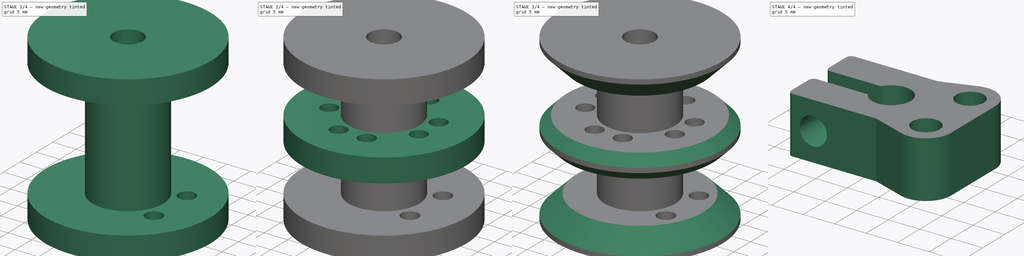
[diagram: build sequence overview — one tinted view per stage of 4, left to right]
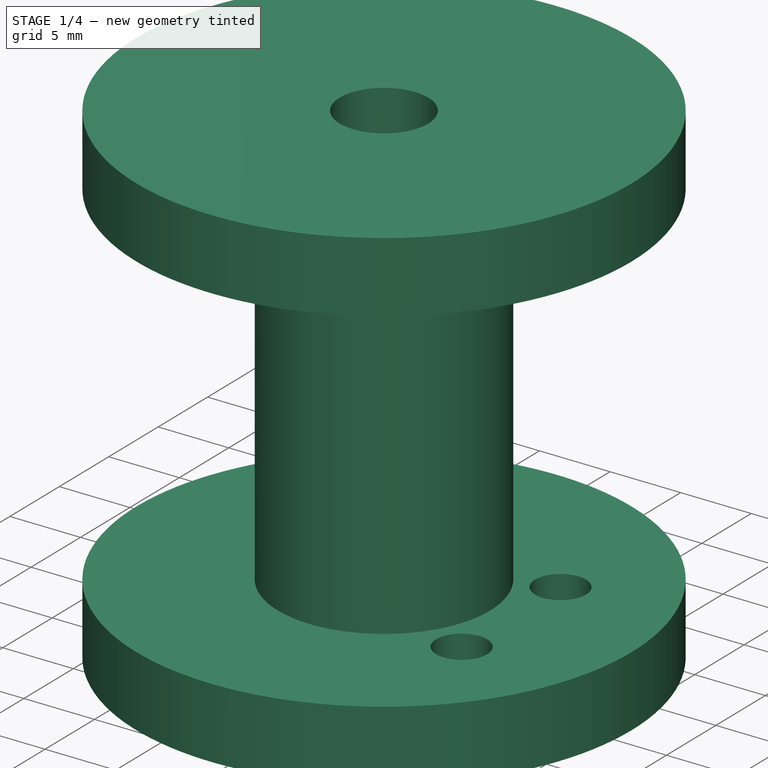
[diagram: stage 1 of 4 — iso view after this stage's code; geometry added in this stage tinted green]
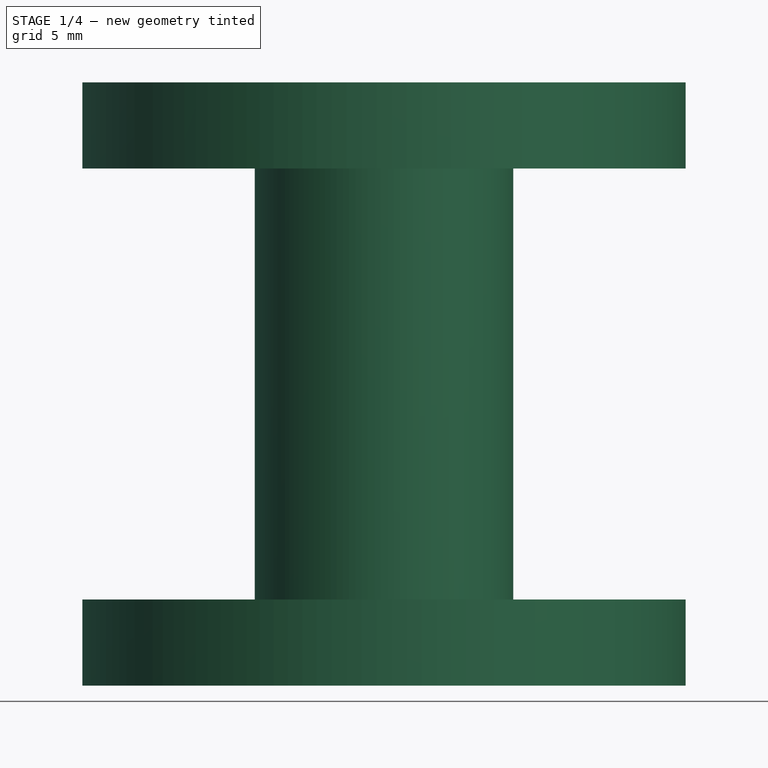
[diagram: stage 1 of 4 — front view after this stage's code; geometry added in this stage tinted green]
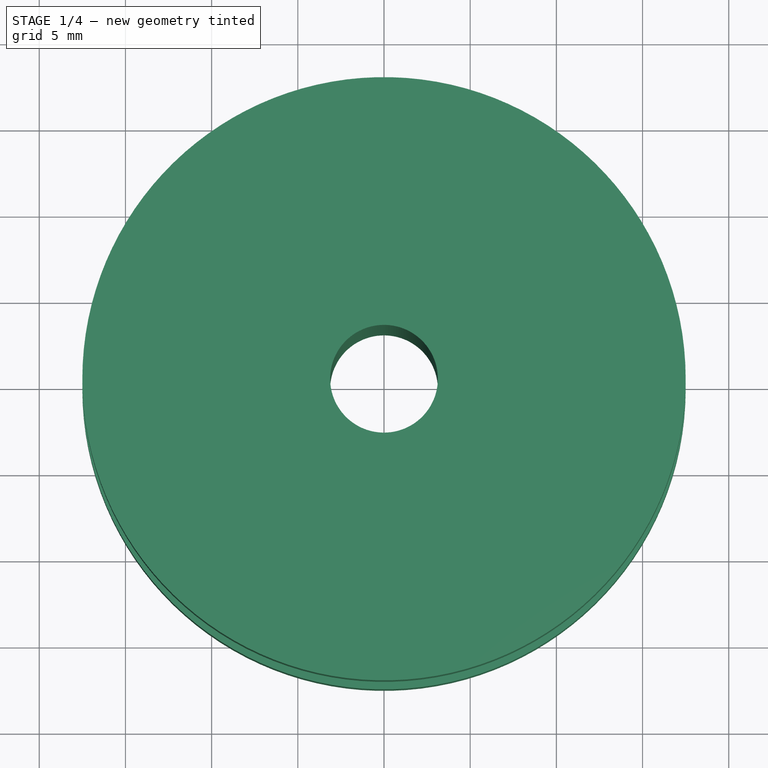
[diagram: stage 1 of 4 — top view after this stage's code; geometry added in this stage tinted green]
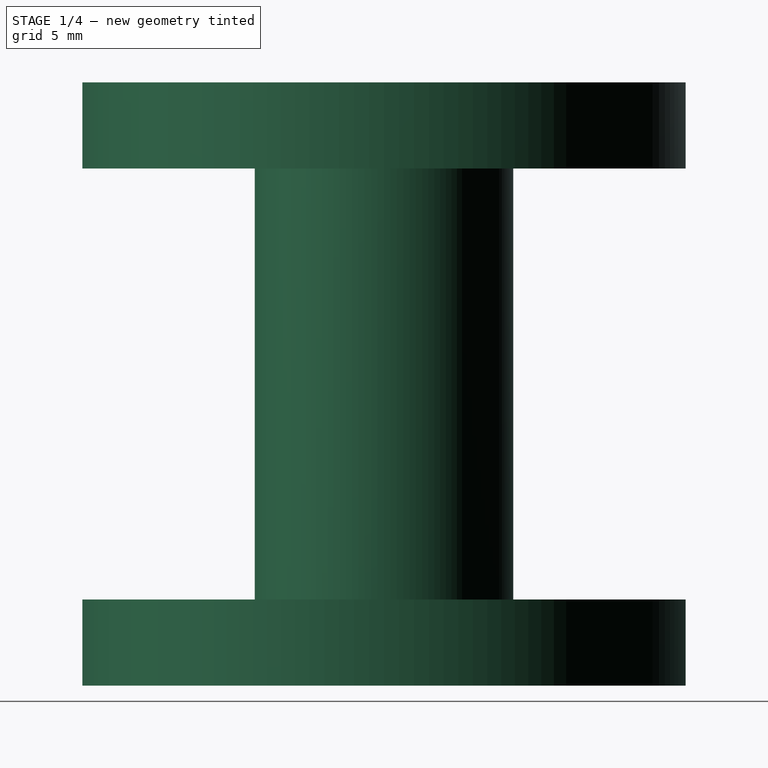
[diagram: stage 1 of 4 — right view after this stage's code; geometry added in this stage tinted green]
FCSTD DOCUMENT  (FreeCAD 1.1R42863 (Git))
Label: Spool
License: All rights reserved
LicenseURL: https://en.wikipedia.org/wiki/All_rights_reserved
objects: Sketcher::SketchObject×7, PartDesign::Pad×5, App::Point×2, PartDesign::Pocket×2, PartDesign::Chamfer×2, PartDesign::Body×2, Part::DatumPlane×1, PartDesign::PolarPattern×1, PartDesign::SubShapeBinder×1, PartDesign::Fillet×1
note: 49 computed .brp shape members not serialized (recipe doc carries the construction recipe); baked Part::Feature solids carry a one-line shape summary decoded from their .brp
EXTERNAL_REF file=../Variables.FCStd obj=Spreadsheet

FEATURE [App::Point] Origin001
  Role = Origin
FEATURE [Sketcher::SketchObject] Sketch
  ArcFitTolerance = 1e-06
  AttachmentSupport = -> [XY_Plane]
  ExternalTypes = [0]
  FullyConstrained = true
  MakeInternals = false
  MapMode = 5
  expr: Constraints[13] = Variables#Spreadsheet.SpoolInnerDiam
  expr: Constraints[7] = Variables#Spreadsheet.M4TapDiam
  sketch-geometry (7):
    g0: Circle CenterX=-2.798e-13 CenterY=0 CenterZ=0 NormalX=0 NormalY=0 NormalZ=1 AngleXU=0 Radius=17.5
    g1: LineSegment [constr] StartX=9 StartY=5 StartZ=0 EndX=9 EndY=-5 EndZ=0
    g2: GeomPoint [constr] X=9 Y=0 Z=0
    g3: Circle CenterX=9 CenterY=5 CenterZ=0 NormalX=0 NormalY=0 NormalZ=1 AngleXU=0 Radius=1.8
    g4: Circle CenterX=9 CenterY=-5 CenterZ=0 NormalX=0 NormalY=0 NormalZ=1 AngleXU=0 Radius=1.8
    g5: Circle CenterX=-2.798e-13 CenterY=0 CenterZ=0 NormalX=0 NormalY=0 NormalZ=1 AngleXU=0 Radius=3.125
    g6: Circle [constr] CenterX=-2.798e-13 CenterY=0 CenterZ=0 NormalX=0 NormalY=0 NormalZ=1 AngleXU=0 Radius=7.5
  constraints (15):
    c: Diameter(g0) = 35
    c: Coincident(g0,g-1)
    c: Distance(g1) = 10
    c: Vertical(g1)
    c: Symmetric(g1,g1,g2)
    c: PointOnObject(g2,g-1)
    c: Coincident(g3,g1)
    c: Diameter(g3) = 3.6
    c: Coincident(g4,g1)
    c: Equal(g4,g3)
    c: Diameter(g5) = 6.25
    c: Coincident(g5,g0)
    c: Coincident(g6,g0)
    c: Diameter(g6) = 15
    c: Distance(g2,g6) = 1.5
FEATURE [PartDesign::Pad] Pad
  Direction = (0,0,1)
  Length = 5
  Length2 = 10
  Profile = -> Sketch
  ReferenceAxis = -> Sketch [N_Axis]
  Refine = true
  Suppressed = false
  Type = 0
  expr: Length = Variables#Spreadsheet.SpoolWallThickness
FEATURE [Sketcher::SketchObject] Sketch001
  ArcFitTolerance = 1e-06
  AttachmentSupport = -> [Pad]
  ExternalGeometry = -> [Pad]
  ExternalTypes = [0]
  FullyConstrained = true
  MakeInternals = false
  MapMode = 5
  Placement = pos=(0,0,0) rot=(1,0,0;3.14159rad)
  expr: Constraints[0] = Variables#Spreadsheet.SpoolInnerDiam
  sketch-geometry (1):
    g0: Circle CenterX=0 CenterY=0 CenterZ=0 NormalX=0 NormalY=0 NormalZ=1 AngleXU=0 Radius=7.5
  constraints (2):
    c: Diameter(g0) = 15
    c: Coincident(g0,g-1)
FEATURE [PartDesign::Pad] Pad001
  BaseFeature = -> Pad
  Direction = (0,0,-1)
  Length = 35
  Length2 = 10
  Profile = -> Sketch001
  ReferenceAxis = -> Sketch001 [N_Axis]
  Refine = true
  Reversed = true
  Suppressed = false
  Type = 0
  expr: Length = Variables#Spreadsheet.SpoolThickness
FEATURE [Sketcher::SketchObject] Sketch002
  ArcFitTolerance = 1e-06
  AttachmentSupport = -> [Pad001]
  ExternalGeometry = -> [Pad001]
  ExternalTypes = [0,0]
  FullyConstrained = true
  MakeInternals = false
  MapMode = 5
  Placement = pos=(0,0,35) rot=(0,0,1;0rad)
FEATURE [PartDesign::Pad] Pad002
  BaseFeature = -> Pad001
  Direction = (0,0,1)
  Length = 5
  Length2 = 10
  Profile = -> Sketch002
  ReferenceAxis = -> Sketch002 [N_Axis]
  Refine = true
  Reversed = true
  Suppressed = false
  Type = 0
  expr: Length = Variables#Spreadsheet.SpoolWallThickness
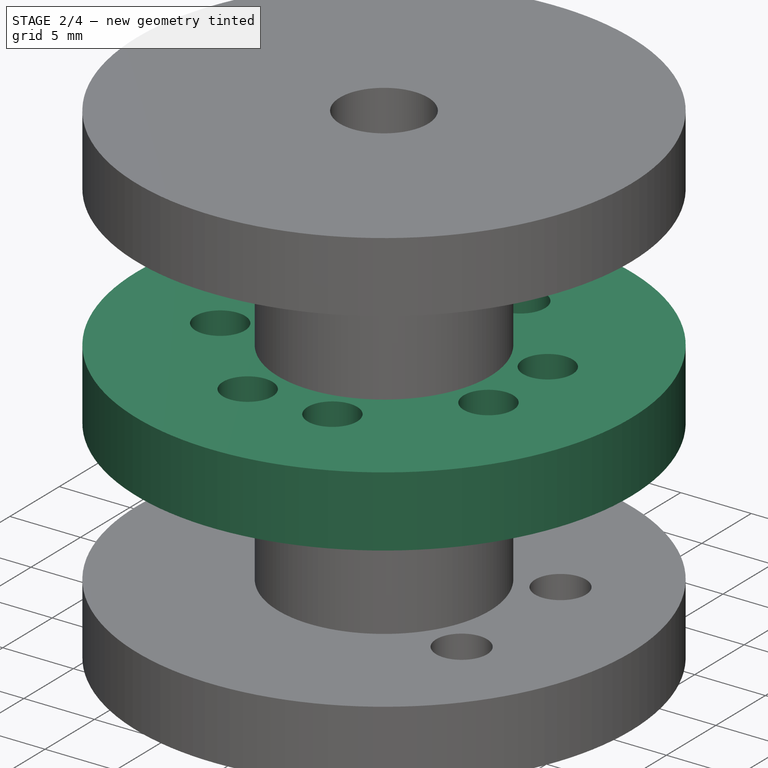
[diagram: stage 2 of 4 — iso view after this stage's code; geometry added in this stage tinted green]
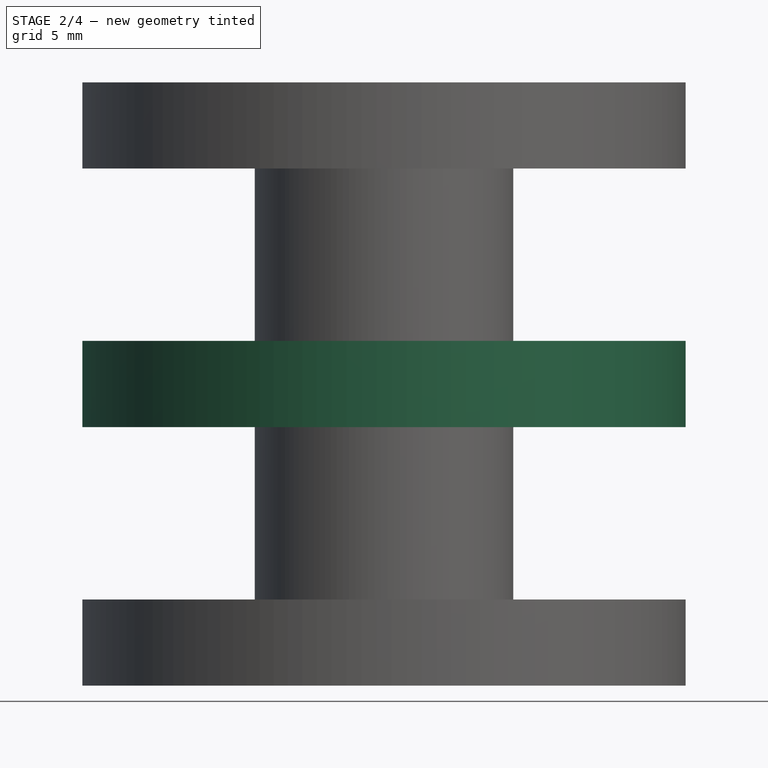
[diagram: stage 2 of 4 — front view after this stage's code; geometry added in this stage tinted green]
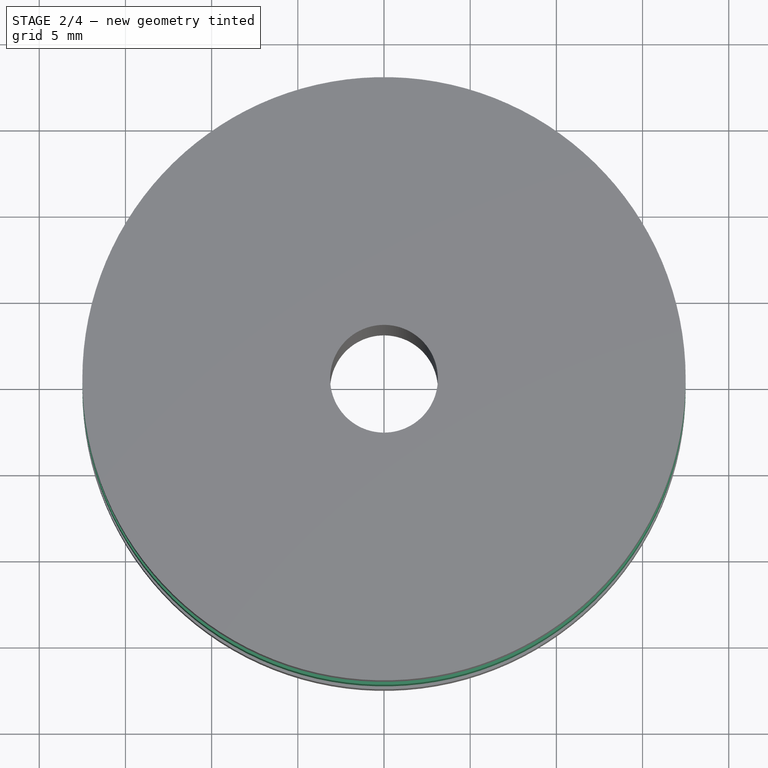
[diagram: stage 2 of 4 — top view after this stage's code; geometry added in this stage tinted green]
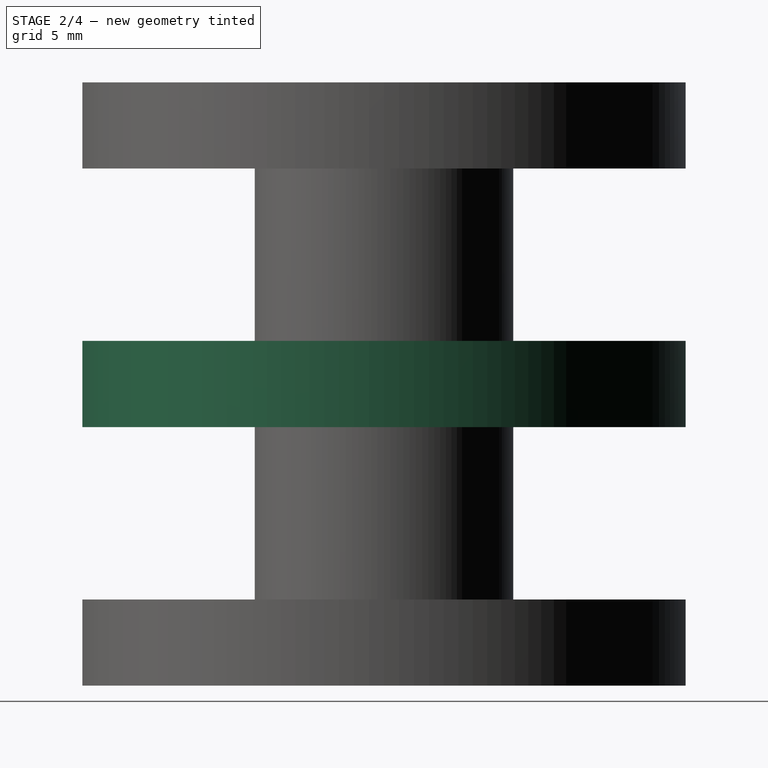
[diagram: stage 2 of 4 — right view after this stage's code; geometry added in this stage tinted green]
FEATURE [Part::DatumPlane] DatumPlane
  AttachmentSupport = -> [Pad002]
  MapMode = 45
  Placement = pos=(-9e-16,0,17.5) rot=(0,0,1;0rad)
FEATURE [Sketcher::SketchObject] Sketch003
  ArcFitTolerance = 1e-06
  AttachmentSupport = -> [DatumPlane]
  ExternalGeometry = -> [Pad002]
  ExternalTypes = [0,0]
  FullyConstrained = true
  MakeInternals = false
  MapMode = 5
  Placement = pos=(-9e-16,0,17.5) rot=(0,0,1;0rad)
FEATURE [PartDesign::Pad] Pad003
  BaseFeature = -> Pad002
  Direction = (0,0,1)
  Length = 5
  Length2 = 10
  Midplane = true
  Profile = -> Sketch003
  ReferenceAxis = -> Sketch003 [N_Axis]
  Refine = true
  Suppressed = false
  Type = 0
  expr: Length = Variables#Spreadsheet.SpoolWallThickness
FEATURE [Sketcher::SketchObject] Sketch004
  ArcFitTolerance = 1e-06
  AttachmentSupport = -> [Pad003]
  ExternalGeometry = -> [Pad003]
  ExternalTypes = [0,0]
  FullyConstrained = true
  MakeInternals = false
  MapMode = 5
  Placement = pos=(0,0,20) rot=(0,0,1;0rad)
  sketch-geometry (5):
    g0: LineSegment [constr] StartX=9.5 StartY=-3 StartZ=0 EndX=9.5 EndY=3 EndZ=0
    g1: Circle CenterX=9.5 CenterY=-3 CenterZ=0 NormalX=0 NormalY=0 NormalZ=1 AngleXU=0 Radius=1.75
    g2: Circle CenterX=9.5 CenterY=3 CenterZ=0 NormalX=0 NormalY=0 NormalZ=1 AngleXU=0 Radius=1.75
    g3: GeomPoint [constr] X=7.5 Y=0 Z=0
    g4: GeomPoint [constr] X=9.5 Y=0 Z=0
  constraints (11):
    c: Vertical(g0)
    c: DistanceY(g0,g0) = 6
    c: Diameter(g1) = 3.5
    c: Coincident(g1,g0)
    c: Coincident(g2,g0)
    c: Equal(g1,g2)
    c: PointOnObject(g3,g-3)
    c: Symmetric(g0,g0,g4)
    c: PointOnObject(g3,g-1)
    c: PointOnObject(g4,g-1)
    c: DistanceX(g3,g4) = 2
FEATURE [PartDesign::Pocket] Pocket
  BaseFeature = -> Pad003
  Direction = (0,0,-1)
  Length = 0
  Length2 = 5
  Profile = -> Sketch004
  ReferenceAxis = -> Sketch004 [N_Axis]
  Refine = true
  Suppressed = false
  Type = 3
  UpToFace = -> Pad003 [Face10]
FEATURE [PartDesign::PolarPattern] PolarPattern
  Angle = 360
  Axis = -> Sketch004 [N_Axis]
  BaseFeature = -> Pocket
  Mode = 0
  Occurrences = 4
  Offset = 120
  Originals = -> [Pocket]
  Refine = true
  Suppressed = false
  TransformMode = 0
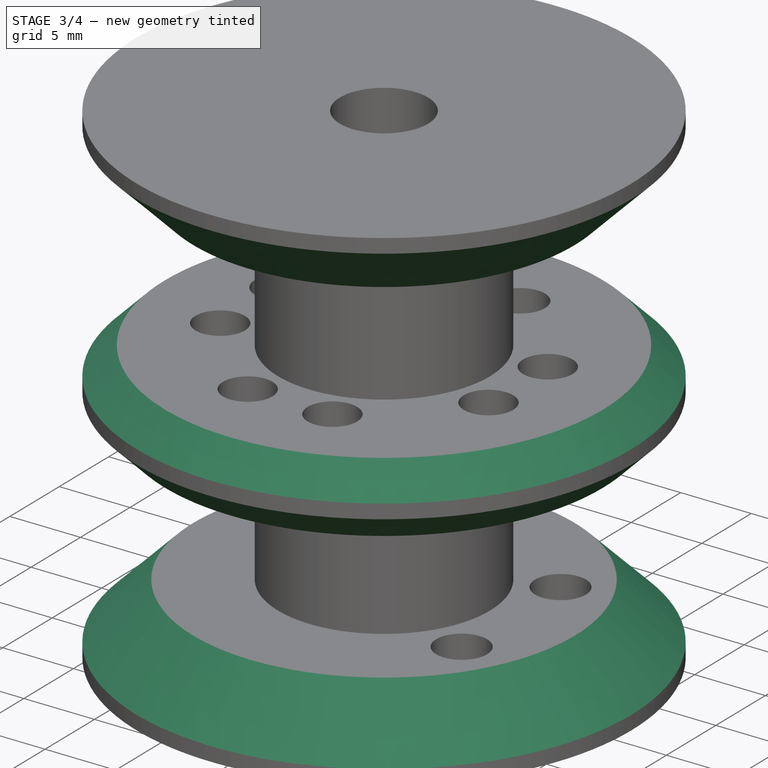
[diagram: stage 3 of 4 — iso view after this stage's code; geometry added in this stage tinted green]
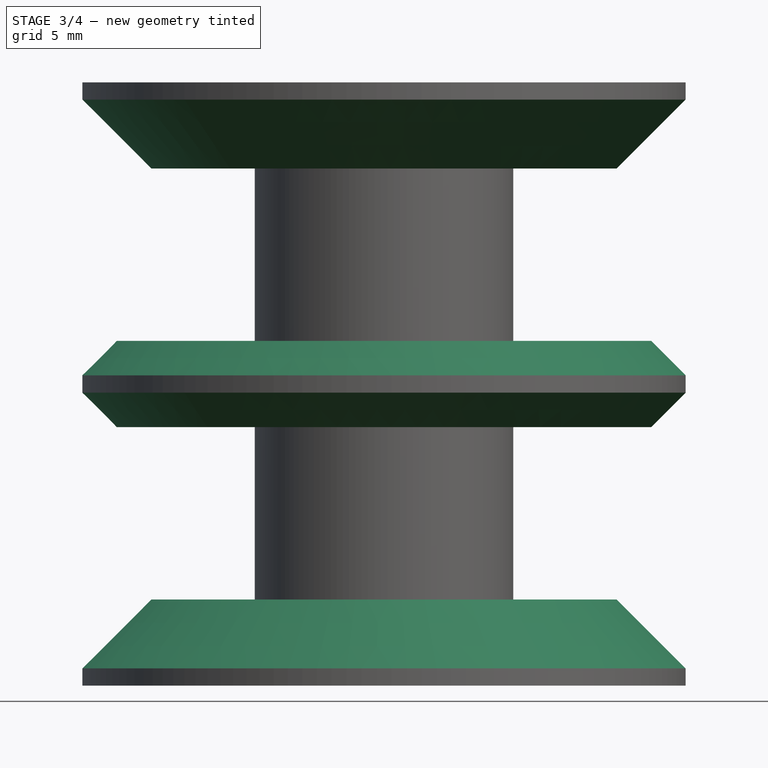
[diagram: stage 3 of 4 — front view after this stage's code; geometry added in this stage tinted green]
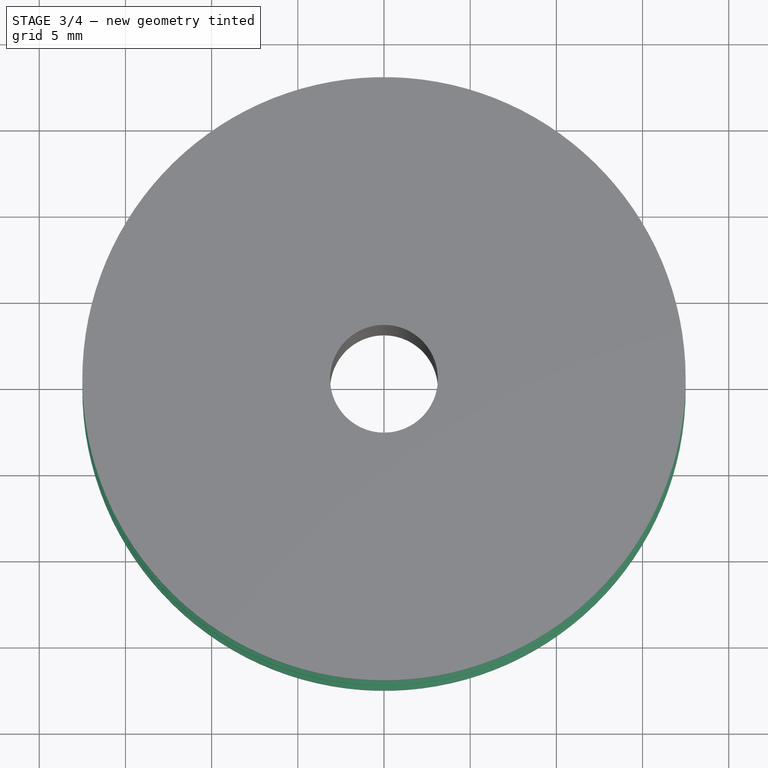
[diagram: stage 3 of 4 — top view after this stage's code; geometry added in this stage tinted green]
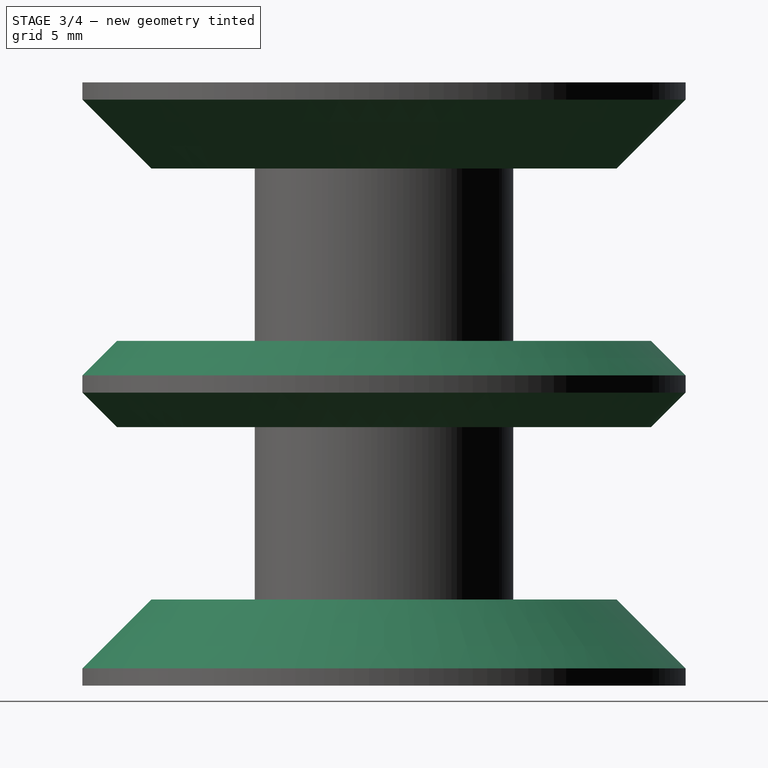
[diagram: stage 3 of 4 — right view after this stage's code; geometry added in this stage tinted green]
FEATURE [PartDesign::Chamfer] Chamfer
  Angle = 45
  Base = -> PolarPattern [Edge19,Edge30]
  BaseFeature = -> PolarPattern
  ChamferType = 0
  FlipDirection = false
  Refine = true
  Size = 2
  Size2 = 1
  SupportTransform = false
  Suppressed = false
  UseAllEdges = false
  expr: Size = Variables#Spreadsheet.SpoolWallThickness / 2 - 0.5
FEATURE [PartDesign::Chamfer] Chamfer001
  Angle = 45
  Base = -> Chamfer [Edge35,Edge41]
  BaseFeature = -> Chamfer
  ChamferType = 0
  FlipDirection = false
  Refine = true
  Size = 4
  Size2 = 1
  SupportTransform = false
  Suppressed = false
  UseAllEdges = false
  expr: Size = Variables#Spreadsheet.SpoolWallThickness - 1
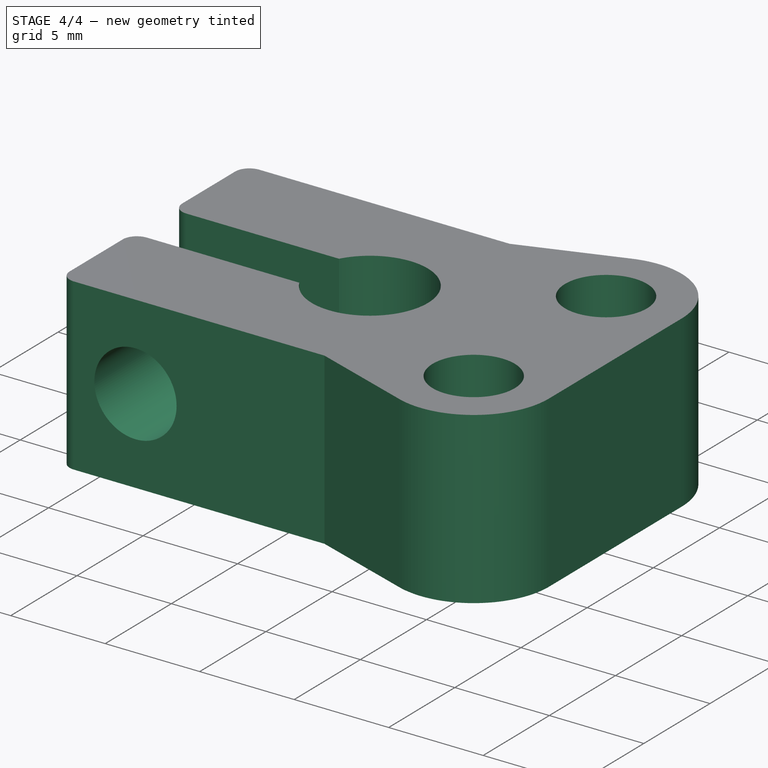
[diagram: stage 4 of 4 — iso view after this stage's code; geometry added in this stage tinted green]
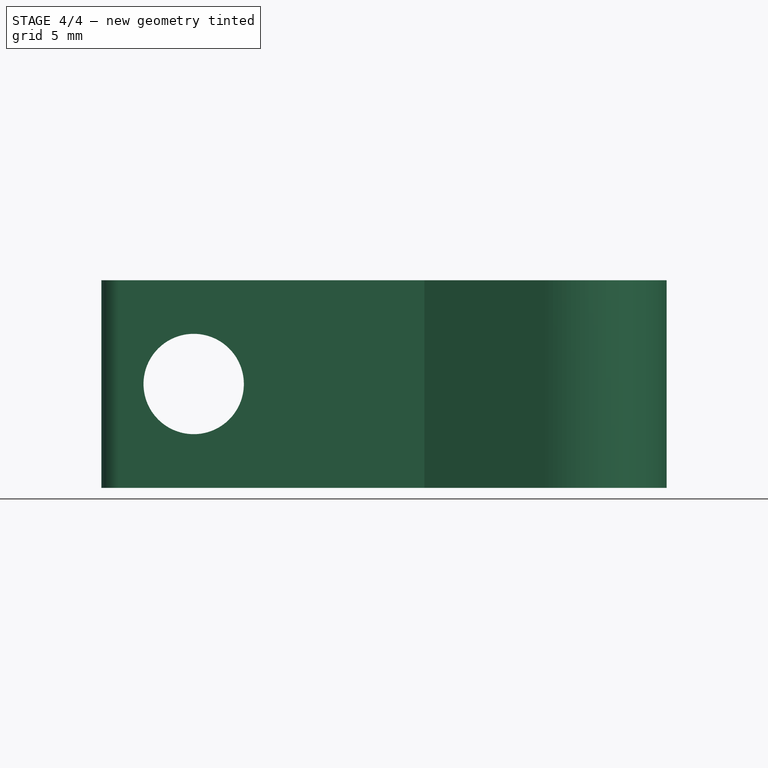
[diagram: stage 4 of 4 — front view after this stage's code; geometry added in this stage tinted green]
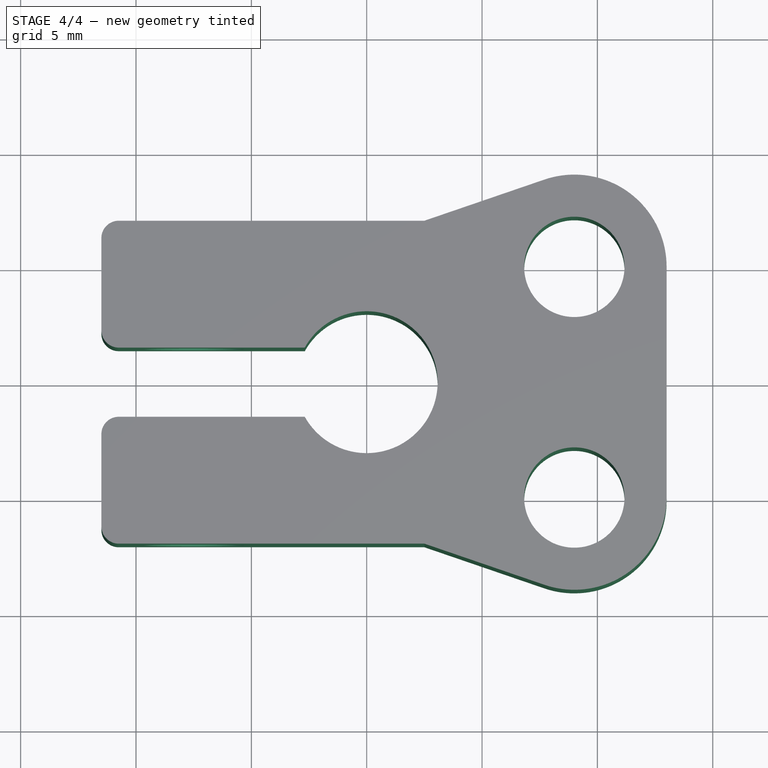
[diagram: stage 4 of 4 — top view after this stage's code; geometry added in this stage tinted green]
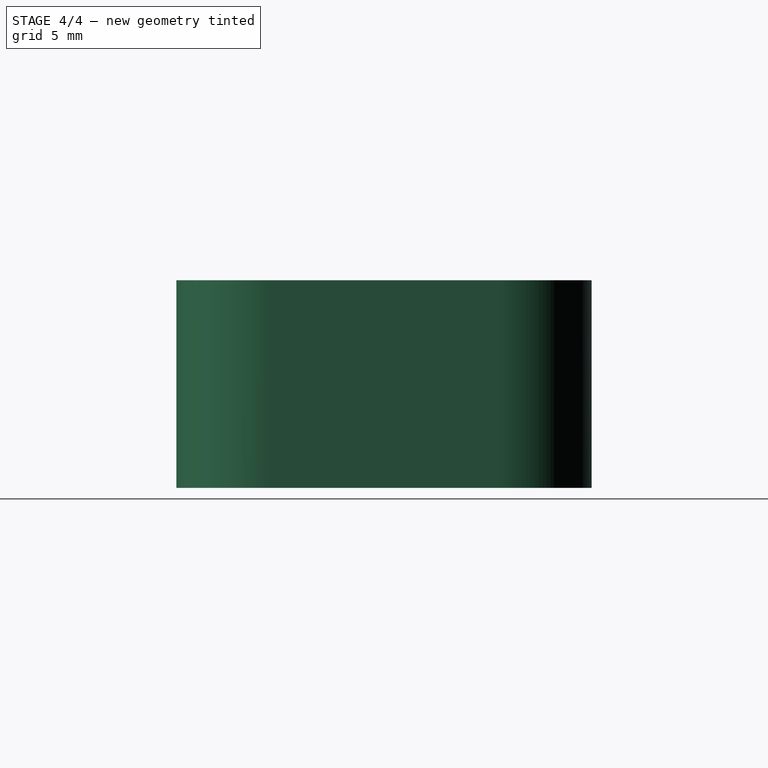
[diagram: stage 4 of 4 — right view after this stage's code; geometry added in this stage tinted green]
FEATURE [PartDesign::Body] Body  label="Spool"
  AllowCompound = true
  Group = -> [Sketch,Pad,Sketch001,Pad001,Sketch002,Pad002,DatumPlane,Sketch003,Pad003,Sketch004,Pocket,PolarPattern,Chamfer,Chamfer001]
  Origin = -> Origin
  Tip = -> Chamfer001
FEATURE [App::Point] Origin003
  Role = Origin
FEATURE [PartDesign::SubShapeBinder] Binder
  BindCopyOnChange = 0
  BindMode = 0
  ClaimChildren = false
  Context = -> Body001 [Binder.]
  Fuse = false
  MakeFace = true
  OffsetFill = false
  OffsetIntersection = false
  OffsetJoinType = 0
  OffsetOpenResult = false
  PartialLoad = false
  Refine = true
  Relative = true
  Support = -> [Body]
  _Version = 2
FEATURE [Sketcher::SketchObject] Sketch005
  ArcFitTolerance = 1e-06
  AttachmentSupport = -> [Binder]
  ExternalGeometry = -> [Binder]
  ExternalTypes = [0,0,0]
  FullyConstrained = false
  MakeInternals = false
  MapMode = 5
  Placement = pos=(0,0,0) rot=(1,0,0;3.14159rad)
  expr: Constraints[34] = Variables#Spreadsheet.M4ThroughBoreDiam
  sketch-geometry (16):
    g0: ArcOfCircle CenterX=9 CenterY=5 CenterZ=0 NormalX=0 NormalY=0 NormalZ=1 AngleXU=0 Radius=4 StartAngle=-9e-16 EndAngle=1.90109
    g1: ArcOfCircle CenterX=9 CenterY=-5 CenterZ=0 NormalX=0 NormalY=0 NormalZ=1 AngleXU=0 Radius=4 StartAngle=4.38209 EndAngle=6.28319
    g2: LineSegment StartX=13 StartY=-5 StartZ=0 EndX=13 EndY=5 EndZ=0
    g3: LineSegment StartX=-11.5 StartY=7 StartZ=0 EndX=2.5 EndY=7 EndZ=0
    g4: LineSegment StartX=2.5 StartY=7 StartZ=0 EndX=7.7027 EndY=8.78378 EndZ=0
    g5: LineSegment StartX=-11.5 StartY=-7 StartZ=0 EndX=2.5 EndY=-7 EndZ=0
    g6: LineSegment StartX=2.5 StartY=-7 StartZ=0 EndX=7.7027 EndY=-8.78378 EndZ=0
    g7: GeomPoint X=0.731343 Y=-5.50967 Z=0
    g8: LineSegment StartX=-11.5 StartY=-7 StartZ=0 EndX=-11.5 EndY=-1.5 EndZ=0
    g9: ArcOfCircle CenterX=0 CenterY=0 CenterZ=0 NormalX=0 NormalY=0 NormalZ=1 AngleXU=0 Radius=3.075 StartAngle=3.65117 EndAngle=8.9152
    g10: LineSegment StartX=-11.5 StartY=7 StartZ=0 EndX=-11.5 EndY=1.5 EndZ=0
    g11: LineSegment StartX=-11.5 StartY=1.5 StartZ=0 EndX=-2.68433 EndY=1.5 EndZ=0
    g12: LineSegment StartX=-11.5 StartY=-1.5 StartZ=0 EndX=-2.68433 EndY=-1.5 EndZ=0
    g13: GeomPoint X=-11.5 Y=0 Z=0
    g14: Circle CenterX=9 CenterY=5 CenterZ=0 NormalX=0 NormalY=0 NormalZ=1 AngleXU=0 Radius=2.175
    g15: Circle CenterX=9 CenterY=-5 CenterZ=0 NormalX=0 NormalY=0 NormalZ=1 AngleXU=0 Radius=2.175
  constraints (37):
    c: Coincident(g0,g-3)
    c: Coincident(g1,g-4)
    c: Tangent(g2,g1) = -1.5708
    c: Tangent(g2,g0) = -1.5708
    c: Vertical(g2)
    c: Horizontal(g3)
    c: Coincident(g4,g3)
    c: Horizontal(g5)
    c: Coincident(g6,g5)
    c: Tangent(g6,g1) = -1.5708
    c: Tangent(g4,g0) = 1.5708
    c: Vertical(g3,g5)
    c: Vertical(g5,g3)
    c: Equal(g4,g6)
    c: DistanceX(g5,g5) = 14
    c: Distance(g5,g-2) = 2.5
    c: Coincident(g8,g5)
    c: Vertical(g8)
    c: Coincident(g9,g-1)
    c: Horizontal(g9,g8)
    c: Coincident(g10,g3)
    c: Vertical(g10)
    c: Coincident(g11,g10)
    c: Horizontal(g11)
    c: Coincident(g12,g8)
    c: Coincident(g12,g9)
    c: PointOnObject(g13,g-1)
    c: Symmetric(g10,g8,g13)
    c: Distance(g11,g12) = 3
    c: Distance(g3,g5) = 14
    c: Radius(g0) = 4
    c: Coincident(g9,g11)
    c: Radius(g9) = 3.075
    c: Coincident(g14,g0)
    c: Diameter(g14) = 4.35
    c: Coincident(g15,g1)
    c: Equal(g14,g15)
FEATURE [PartDesign::Pad] Pad004
  Direction = (0,0,-1)
  Length = 9
  Length2 = 10
  Profile = -> Sketch005
  ReferenceAxis = -> Sketch005 [N_Axis]
  Refine = true
  Suppressed = false
  Type = 0
FEATURE [Sketcher::SketchObject] Sketch006
  ArcFitTolerance = 1e-06
  AttachmentSupport = -> [Pad004]
  ExternalGeometry = -> [Pad004]
  ExternalTypes = [0]
  FullyConstrained = true
  MakeInternals = false
  MapMode = 5
  Placement = pos=(0,7,0) rot=(0,0.707107,0.707107;3.14159rad)
  expr: Constraints[1] = Variables#Spreadsheet.M4ThroughBoreDiam
  sketch-geometry (2):
    g0: GeomPoint [constr] X=11.5 Y=-4.5 Z=0
    g1: Circle CenterX=7.5 CenterY=-4.5 CenterZ=0 NormalX=0 NormalY=0 NormalZ=1 AngleXU=0 Radius=2.175
  constraints (4):
    c: Symmetric(g-3,g-3,g0)
    c: Diameter(g1) = 4.35
    c: Horizontal(g1,g0)
    c: DistanceX(g1,g0) = 4
FEATURE [PartDesign::Pocket] Pocket001
  BaseFeature = -> Pad004
  Direction = (0,-1,2e-16)
  Length = 0
  Length2 = 5
  Profile = -> Sketch006
  ReferenceAxis = -> Sketch006 [N_Axis]
  Refine = true
  Suppressed = false
  Type = 3
  UpToFace = -> Pad004 [Face7]
FEATURE [PartDesign::Fillet] Fillet
  Base = -> Pocket001 [Edge41,Edge43,Edge6,Edge1]
  BaseFeature = -> Pocket001
  Radius = 0.75
  Refine = true
  SupportTransform = false
  Suppressed = false
  UseAllEdges = false
FEATURE [PartDesign::Body] Body001  label="Spool CHub"
  AllowCompound = true
  Group = -> [Binder,Sketch005,Pad004,Sketch006,Pocket001,Fillet]
  Origin = -> Origin002
  Tip = -> Fillet
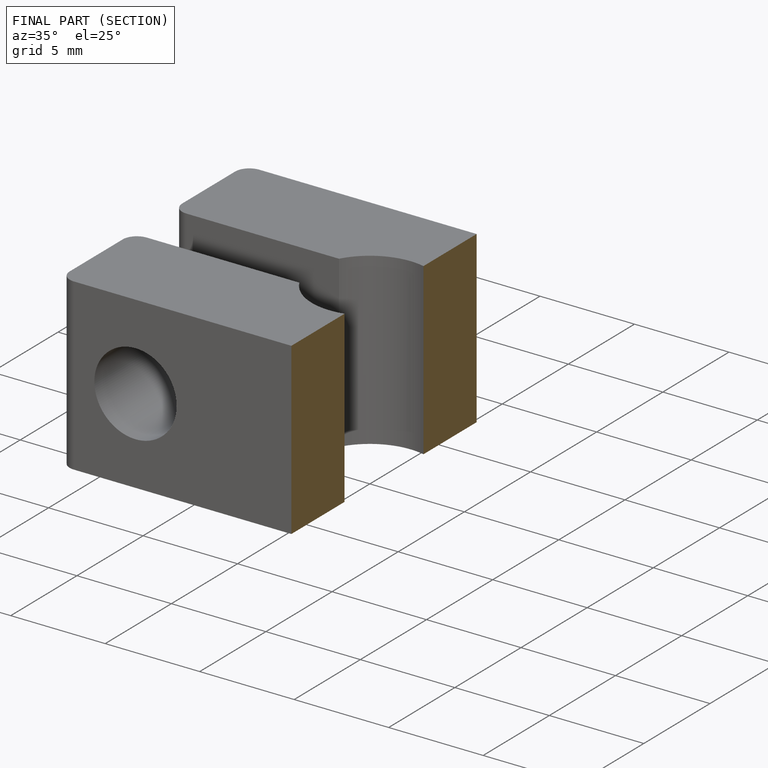
[diagram: finished part — half-section view (interior)]
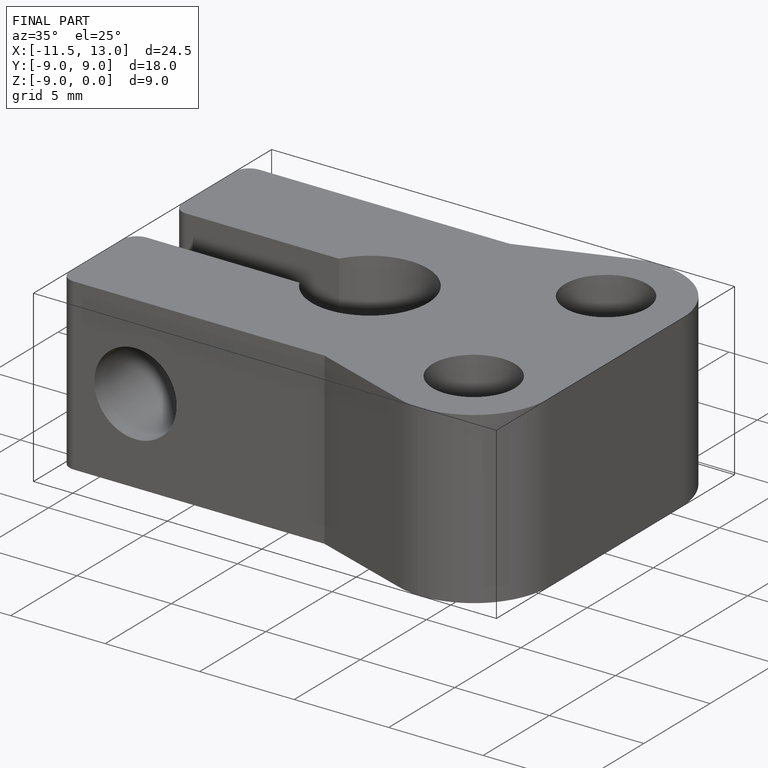
[diagram: finished part — iso view with bounding-box wireframe]
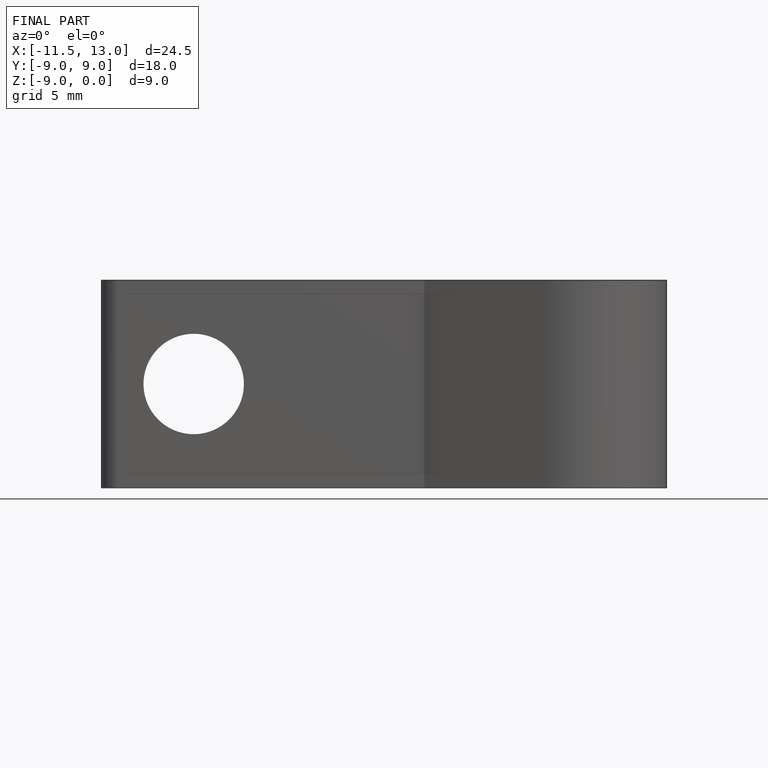
[diagram: finished part — front view with bounding-box wireframe]
